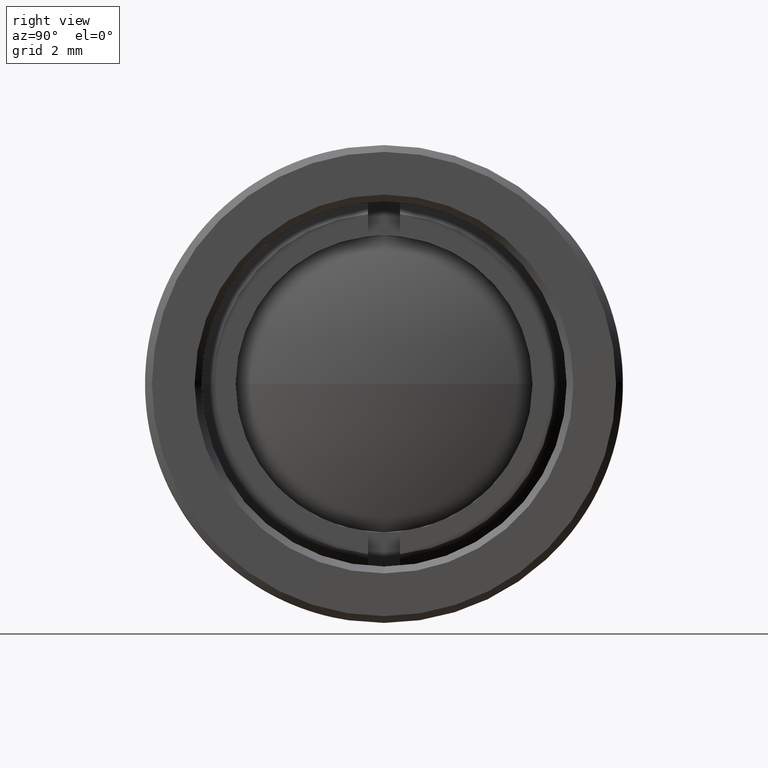
[diagram: clean part render]
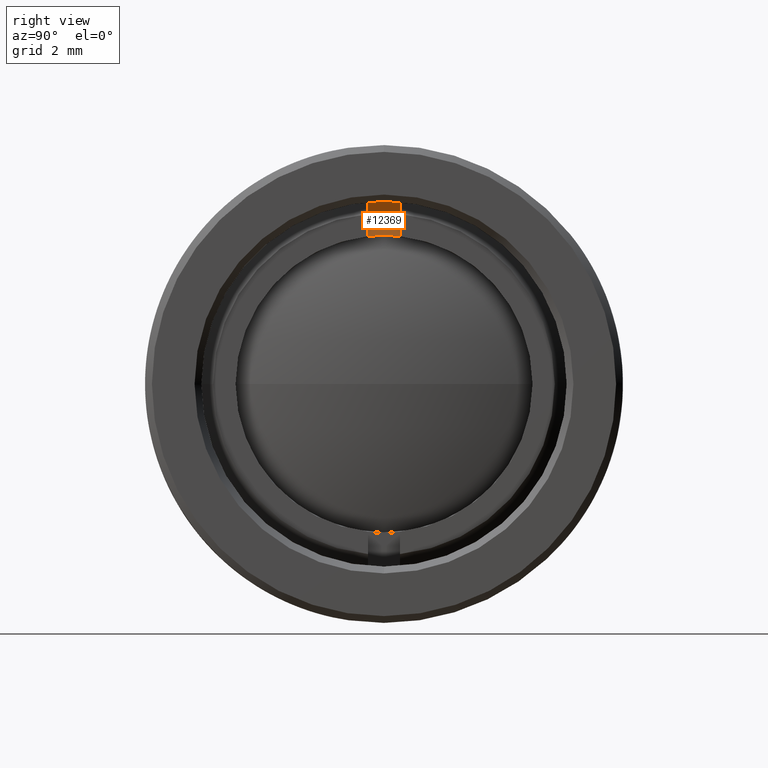
[diagram: same view with one face highlighted and labeled with its STEP entity id]
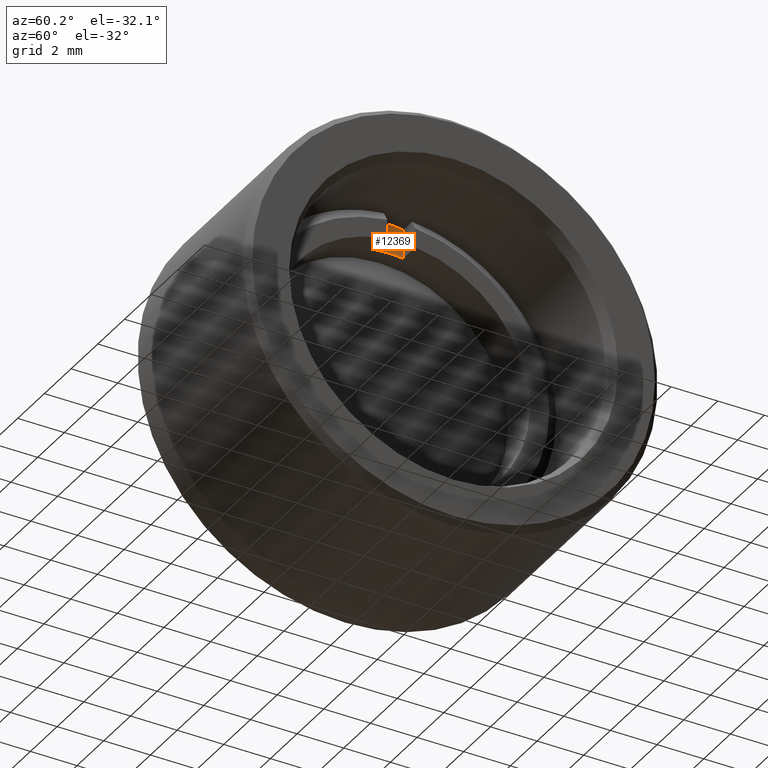
[diagram: same view with one face highlighted and labeled with its STEP entity id]
A machine part, right view. The second image highlights one B-rep face of the part: STEP entity #12369.
A second angle (auxiliary view) of the same face is appended — the face is thin or edge-on in the first view.
In plain terms, the highlighted planar face has unit normal (1, 0, 0).
Its self-contained STEP definition (entity closure, byte-faithful):
#455 = CARTESIAN_POINT ( 'NONE',  ( 0.01552755765651174200, -8.003369327120431900E-018, 0.0000000000000000000 ) ) ;
#468 = DIRECTION ( 'NONE',  ( -1.000000000000000000, -0.0000000000000000000, -0.0000000000000000000 ) ) ;
#1116 = ORIENTED_EDGE ( 'NONE', *, *, #1990, .T. ) ;
#1500 = AXIS2_PLACEMENT_3D ( 'NONE', #9819, #1540, #11205 ) ;
#1540 = DIRECTION ( 'NONE',  ( 1.000000000000000000, 0.0000000000000000000, 0.0000000000000000000 ) ) ;
#1627 = EDGE_LOOP ( 'NONE', ( #1116, #16662, #14023, #16102 ) ) ;
#1922 = DIRECTION ( 'NONE',  ( 0.0000000000000000000, 1.000000000000000000, 0.0000000000000000000 ) ) ;
#1990 = EDGE_CURVE ( 'NONE', #9951, #5892, #12269, .T. ) ;
#2499 = DIRECTION ( 'NONE',  ( 0.0000000000000000000, -1.699281587288270400E-016, -1.000000000000000000 ) ) ;
#2676 = CIRCLE ( 'NONE', #12890, 0.2175000000000000000 ) ;
#2715 = LINE ( 'NONE', #16714, #10060 ) ;
#3632 = CARTESIAN_POINT ( 'NONE',  ( 0.01552755765651174200, 0.02349999999999999000, 0.2664657576500216200 ) ) ;
#5892 = VERTEX_POINT ( 'NONE', #12138 ) ;
#6120 = EDGE_CURVE ( 'NONE', #9144, #7593, #2676, .T. ) ;
#6555 = AXIS2_PLACEMENT_3D ( 'NONE', #455, #10179, #1922 ) ;
#7593 = VERTEX_POINT ( 'NONE', #17141 ) ;
#8722 = CARTESIAN_POINT ( 'NONE',  ( 0.01552755765651174200, -8.003369327120431900E-018, 0.0000000000000000000 ) ) ;
#8774 = PLANE ( 'NONE',  #6555 ) ;
#9144 = VERTEX_POINT ( 'NONE', #13288 ) ;
#9819 = CARTESIAN_POINT ( 'NONE',  ( 0.01552755765651174200, -8.003369327120431900E-018, 0.0000000000000000000 ) ) ;
#9951 = VERTEX_POINT ( 'NONE', #3632 ) ;
#10060 = VECTOR ( 'NONE', #15314, 39.37007874015748100 ) ;
#10098 = FACE_OUTER_BOUND ( 'NONE', #1627, .T. ) ;
#10135 = DIRECTION ( 'NONE',  ( 0.0000000000000000000, 1.000000000000000000, 0.0000000000000000000 ) ) ;
#10179 = DIRECTION ( 'NONE',  ( 1.000000000000000000, 0.0000000000000000000, 0.0000000000000000000 ) ) ;
#11205 = DIRECTION ( 'NONE',  ( 0.0000000000000000000, 1.000000000000000000, 0.0000000000000000000 ) ) ;
#11352 = LINE ( 'NONE', #12148, #15050 ) ;
#12138 = CARTESIAN_POINT ( 'NONE',  ( 0.01552755765651174200, -0.02350000000000000700, 0.2664657576500216200 ) ) ;
#12148 = CARTESIAN_POINT ( 'NONE',  ( 0.01552755765651174200, -0.02350000000000000700, 0.2664657576500216200 ) ) ;
#12269 = CIRCLE ( 'NONE', #1500, 0.2675000000000000700 ) ;
#12369 = ADVANCED_FACE ( 'NONE', ( #10098 ), #8774, .T. ) ;
#12890 = AXIS2_PLACEMENT_3D ( 'NONE', #8722, #468, #10135 ) ;
#13288 = CARTESIAN_POINT ( 'NONE',  ( 0.01552755765651174200, -0.02350000000000001400, 0.2162267328523464500 ) ) ;
#14023 = ORIENTED_EDGE ( 'NONE', *, *, #6120, .T. ) ;
#14281 = EDGE_CURVE ( 'NONE', #5892, #9144, #11352, .T. ) ;
#15050 = VECTOR ( 'NONE', #2499, 39.37007874015748100 ) ;
#15314 = DIRECTION ( 'NONE',  ( 0.0000000000000000000, -1.699281587288270400E-016, 1.000000000000000000 ) ) ;
#15421 = EDGE_CURVE ( 'NONE', #7593, #9951, #2715, .T. ) ;
#16102 = ORIENTED_EDGE ( 'NONE', *, *, #15421, .T. ) ;
#16662 = ORIENTED_EDGE ( 'NONE', *, *, #14281, .T. ) ;
#16714 = CARTESIAN_POINT ( 'NONE',  ( 0.01552755765651174200, 0.02349999999999999000, 0.2664657576500216200 ) ) ;
#17141 = CARTESIAN_POINT ( 'NONE',  ( 0.01552755765651174200, 0.02349999999999998600, 0.2162267328523464800 ) ) ;